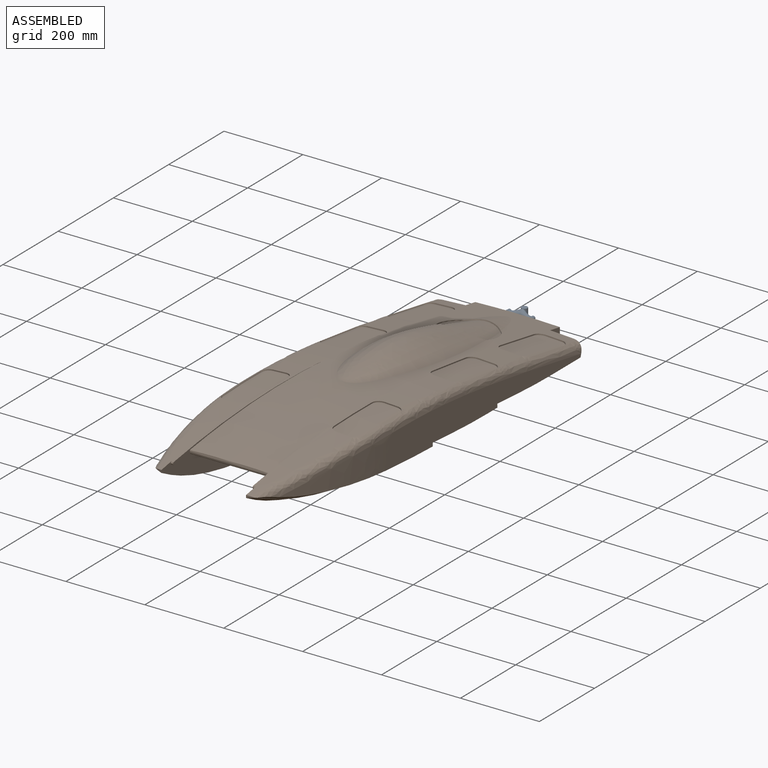
[diagram: assembled view]
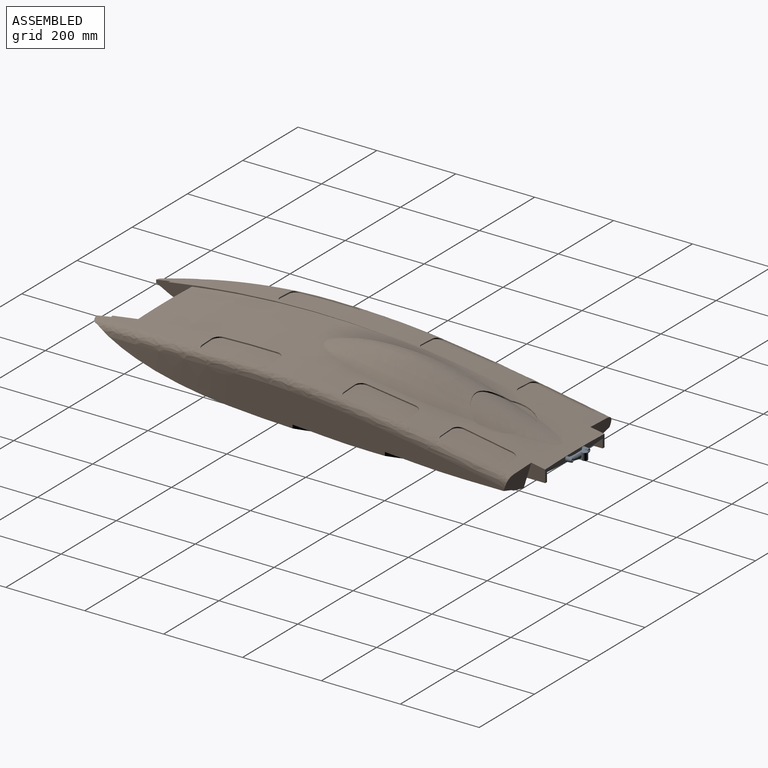
[diagram: assembled view, second angle]
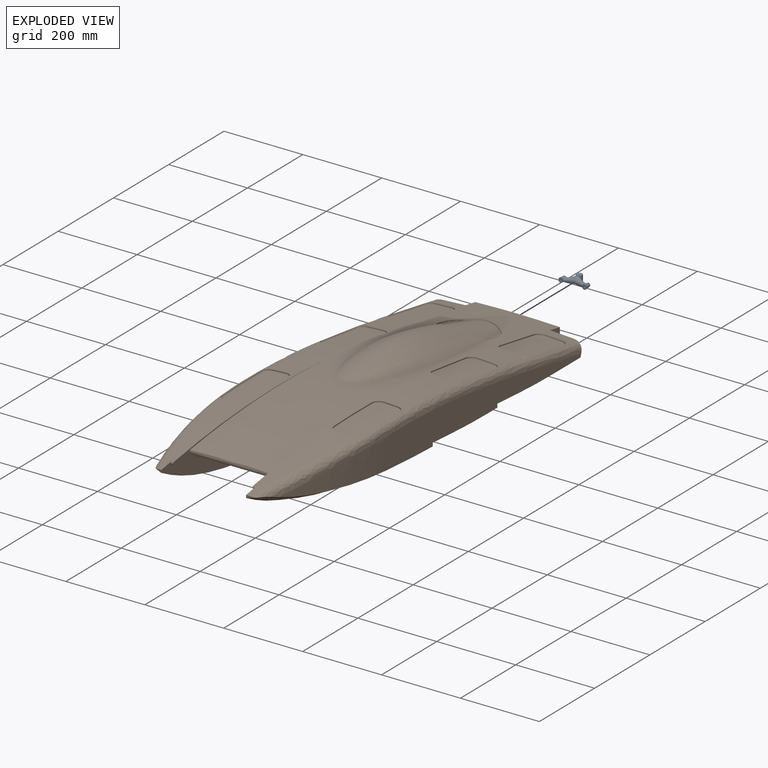
[diagram: exploded view]
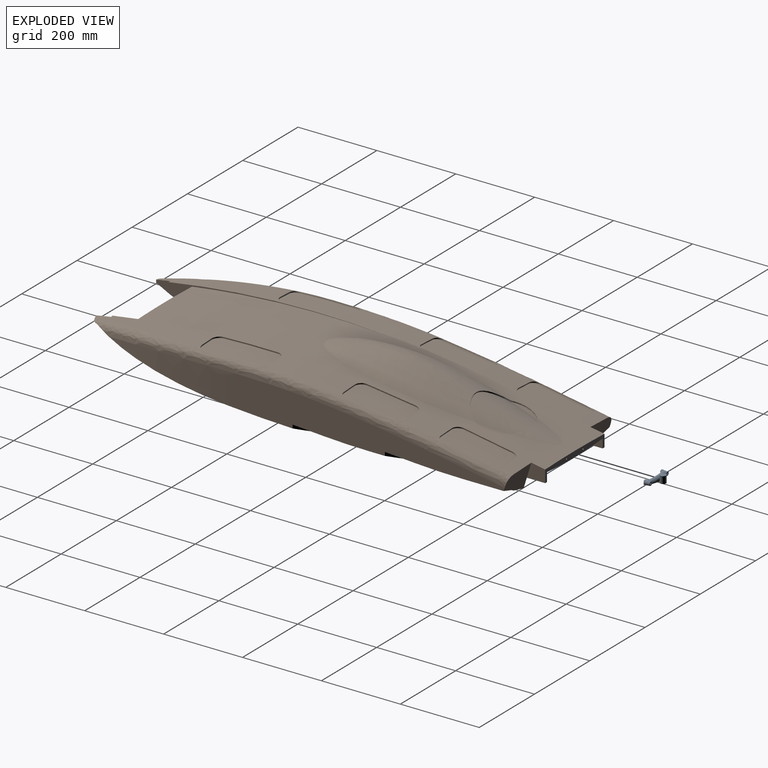
[diagram: exploded view, second angle]
ASSEMBLY  parts=2 mates=3
PART A: 34 faces, bbox 73x33.5x19 mm
  f0: cone r=6mm half-angle=5deg, axis (0,-1,0), area 45.1mm2, adj f1,f10,f11,f12,f28
  f1: cone r=6mm half-angle=5deg, axis (0,-1,0), area 45.1mm2, adj f0,f10,f11,f28
  f2: plane 10.39x3mm, normal (0,-1,0), area 22.1mm2, adj f11,f12,f30
  f3: bspline ~27.89x17.07mm, area 682.4mm2, adj f4,f15,f19,f33
  f4: bspline ~27.89x17.07mm, area 682.4mm2, adj f3,f11,f16,f28
  f5: cone r=6mm half-angle=5deg, axis (0,-1,0), area 45.1mm2, adj f6,f17,f18,f19,f33
  f6: cone r=6mm half-angle=5deg, axis (0,-1,0), area 45.1mm2, adj f5,f17,f19,f33
  f7: plane 10.39x3mm, normal (0,-1,0), area 22.1mm2, adj f18,f19,f31
  f8: cylinder r=2mm len=14mm, axis (0,-1,0), area 175.9mm2, adj f20,f33
  f9: cylinder r=2mm len=14mm, axis (0,-1,0), area 175.9mm2, adj f13,f28
  f10: cone r=6mm half-angle=5deg, axis (0,-1,0), area 29.1mm2, adj f0,f1,f11
  f11: cone r=6mm half-angle=5deg, axis (0,-1,0), area 241mm2, adj f0,f1,f2,f4,f10,f12,f13,f14
  f12: cone r=6mm half-angle=5deg, axis (0,-1,0), area 13.2mm2, adj f0,f2,f11,f28,f30
  f13: plane 9.38x9.38mm, normal (0,1,0), area 56.5mm2, adj f9,f11
  f14: plane 10.39x3mm, normal (0,-1,0), area 22.1mm2, adj f11,f29
  f15: bspline ~27.51x17.07mm, area 361mm2, adj f3,f19,f25
  f16: bspline ~27.51x17.07mm, area 361mm2, adj f4,f11,f24
  f17: cone r=6mm half-angle=5deg, axis (0,-1,0), area 29.1mm2, adj f5,f6,f19
  f18: cone r=6mm half-angle=5deg, axis (0,-1,0), area 13.2mm2, adj f5,f7,f19,f31,f33
  f19: cone r=6mm half-angle=5deg, axis (0,-1,0), area 241mm2, adj f3,f5,f6,f7,f15,f17,f18,f20
  f20: plane 9.38x9.38mm, normal (0,1,0), area 56.5mm2, adj f8,f19
  f21: plane 10.39x3mm, normal (0,-1,0), area 22.1mm2, adj f19,f32
  f22: cylinder r=7.5mm len=17.07mm, axis (0,0,1), area 103.1mm2, adj f23,f24
  f23: cylinder r=7.5mm len=17.07mm, axis (0,0,1), area 103.1mm2, adj f22,f25
  f24: cylinder r=7.5mm len=18mm, axis (0,0,1), area 217.9mm2, adj f16,f22,f25,f26,f27
  f25: cylinder r=7.5mm len=18mm, axis (0,0,1), area 217.9mm2, adj f15,f23,f24,f26,f27
  f26: plane 15x15mm, normal (0,0,-1), area 176.7mm2, adj f24,f25
  f27: plane 15x15mm, normal (0,0,1), area 176.7mm2, adj f24,f25
  f28: plane 13.35x7.03mm, normal (0,-1,0), area 55.9mm2, adj f0,f1,f4,f9,f11,f12,f29,f30
  f29: plane 10.39x1mm, normal (0,0,1), area 10.3mm2, adj f11,f14,f28
  f30: plane 10.39x1mm, normal (0,0,-1), area 10.3mm2, adj f2,f11,f12,f28
  f31: plane 10.39x1mm, normal (0,0,-1), area 10.3mm2, adj f7,f18,f19,f33
  f32: plane 10.39x1mm, normal (0,0,1), area 10.3mm2, adj f19,f21,f33
  f33: plane 13.35x7.03mm, normal (0,-1,0), area 55.9mm2, adj f3,f5,f6,f8,f18,f19,f31,f32
PART B: 203 faces, bbox 398.6x1211.5x191.1 mm
  f0: bspline ~79.82x23.27mm, area 240.2mm2, adj f1,f3,f138,f144
  f1: bspline ~67.56x50.87mm, area 279.3mm2, adj f0,f2,f137,f138,f140
  f2: bspline ~69.82x56.27mm, area 279.3mm2, adj f1,f4,f72,f73,f75
  f3: bspline ~54.55x25.67mm, area 164.5mm2, adj f0,f5,f138,f139,f198
  f4: bspline ~79.82x23.27mm, area 240.2mm2, adj f2,f5,f73,f79
  f5: bspline ~54.55x25.67mm, area 164.5mm2, adj f3,f4,f73,f74,f134
  f6: bspline ~18.02x12.64mm, area 68.1mm2, adj f8,f9,f149,f153
  f7: bspline ~16.34x9.4mm, area 58.2mm2, adj f8,f14,f149,f153
  f8: bspline ~136.37x5.45mm, area 408.9mm2, adj f6,f7,f149,f153
  f9: bspline ~6.97x3.35mm, area 20.7mm2, adj f6,f10,f150,f154
  f10: bspline ~32.39x4.63mm, area 96.8mm2, adj f9,f11,f150,f154
  f11: bspline ~18.14x13.12mm, area 71.2mm2, adj f10,f15,f150,f154
  f12: bspline ~18.14x13.04mm, area 71.2mm2, adj f13,f17,f151,f154
  f13: bspline ~32.39x4.64mm, area 96.8mm2, adj f12,f14,f151,f154
  f14: bspline ~9.94x3.52mm, area 30.8mm2, adj f7,f13,f151,f154
  f15: bspline ~6.15x3.32mm, area 18.4mm2, adj f11,f16,f152,f190
  f16: bspline ~136.37x5.5mm, area 408.9mm2, adj f15,f17,f152,f190
  f17: bspline ~6.07x3.17mm, area 18.4mm2, adj f12,f16,f152,f190
  f18: bspline ~7.69x3.61mm, area 23.3mm2, adj f19,f37,f144,f148
  f19: bspline ~39.04x4.94mm, area 116.8mm2, adj f18,f20,f144,f148
  f20: bspline ~19.32x19.11mm, area 89.7mm2, adj f19,f21,f144,f148
  f21: bspline ~121.41x18.8mm, area 366.1mm2, adj f20,f22,f144,f148
  f22: bspline ~19.44x19.11mm, area 90.2mm2, adj f21,f23,f144,f148
  f23: bspline ~39.03x4.92mm, area 116.8mm2, adj f22,f24,f144,f148
  f24: bspline ~7.68x3.17mm, area 23.2mm2, adj f23,f35,f144,f148
  f25: bspline ~7.68x3.7mm, area 23.2mm2, adj f26,f34,f142,f144
  f26: bspline ~39.03x4.92mm, area 116.8mm2, adj f25,f27,f142,f144
  f27: bspline ~19.49x19.11mm, area 90mm2, adj f26,f28,f142,f144
  f28: bspline ~121.56x23.88mm, area 368.5mm2, adj f27,f29,f142,f144
  f29: bspline ~19.53x19.11mm, area 90.4mm2, adj f28,f30,f142,f144
  f30: bspline ~39.03x4.91mm, area 116.8mm2, adj f29,f31,f142,f144
  f31: bspline ~7.67x3.16mm, area 23.1mm2, adj f30,f32,f142,f144
  f32: bspline ~17.94x11.67mm, area 65.5mm2, adj f31,f33,f141,f143
  f33: bspline ~121.52x23.64mm, area 368.5mm2, adj f32,f34,f141,f143
  f34: bspline ~17.95x11.67mm, area 67.5mm2, adj f25,f33,f141,f143
  f35: bspline ~17.86x11.68mm, area 65.5mm2, adj f24,f36,f143,f147
  f36: bspline ~121.37x18.54mm, area 366.2mm2, adj f35,f37,f143,f147
  f37: bspline ~17.77x11.66mm, area 66.8mm2, adj f18,f36,f143,f147
  f38: bspline ~17.77x11.66mm, area 66.8mm2, adj f39,f57,f78,f82
  f39: bspline ~121.38x18.57mm, area 366.2mm2, adj f38,f40,f78,f82
  f40: bspline ~17.86x11.68mm, area 65.5mm2, adj f39,f51,f78,f82
  f41: bspline ~17.95x11.67mm, area 67.5mm2, adj f42,f50,f76,f78
  f42: bspline ~121.52x23.64mm, area 368.5mm2, adj f41,f43,f76,f78
  f43: bspline ~17.94x11.67mm, area 65.5mm2, adj f42,f44,f76,f78
  f44: bspline ~7.67x3.16mm, area 23.1mm2, adj f43,f45,f77,f79
  f45: bspline ~39.03x4.91mm, area 116.8mm2, adj f44,f46,f77,f79
  f46: bspline ~19.53x19.11mm, area 90.4mm2, adj f45,f47,f77,f79
  f47: bspline ~121.56x23.88mm, area 368.5mm2, adj f46,f48,f77,f79
  f48: bspline ~19.49x19.11mm, area 90mm2, adj f47,f49,f77,f79
  f49: bspline ~39.03x4.92mm, area 116.8mm2, adj f48,f50,f77,f79
  f50: bspline ~7.68x3.7mm, area 23.2mm2, adj f41,f49,f77,f79
  f51: bspline ~7.68x3.17mm, area 23.2mm2, adj f40,f52,f79,f83
  f52: bspline ~39.03x4.92mm, area 116.8mm2, adj f51,f53,f79,f83
  f53: bspline ~19.44x19.11mm, area 90.2mm2, adj f52,f54,f79,f83
  f54: bspline ~121.41x18.8mm, area 366.1mm2, adj f53,f55,f79,f83
  f55: bspline ~19.32x19.11mm, area 89.7mm2, adj f54,f56,f79,f83
  f56: bspline ~39.04x4.94mm, area 116.8mm2, adj f55,f57,f79,f83
  f57: bspline ~7.69x3.64mm, area 23.3mm2, adj f38,f56,f79,f83
  f58: bspline ~16.34x9.41mm, area 58.2mm2, adj f60,f61,f84,f88
  f59: bspline ~18.02x12.64mm, area 68.1mm2, adj f60,f66,f84,f88
  f60: bspline ~136.37x5.45mm, area 408.9mm2, adj f58,f59,f84,f88
  f61: bspline ~9.94x3.52mm, area 30.8mm2, adj f58,f62,f86,f89
  f62: bspline ~32.39x4.64mm, area 96.8mm2, adj f61,f63,f86,f89
  f63: bspline ~18.14x13.04mm, area 71.2mm2, adj f62,f67,f86,f89
  f64: bspline ~18.14x13.12mm, area 71.2mm2, adj f65,f69,f85,f89
  f65: bspline ~32.39x4.63mm, area 96.8mm2, adj f64,f66,f85,f89
  f66: bspline ~6.97x3.35mm, area 20.7mm2, adj f59,f65,f85,f89
  f67: bspline ~6.07x3.17mm, area 18.4mm2, adj f63,f68,f87,f126
  f68: bspline ~136.37x5.5mm, area 408.9mm2, adj f67,f69,f87,f126
  f69: bspline ~6.15x3.32mm, area 18.4mm2, adj f64,f68,f87,f126
  f70: plane 214.51x33.12mm, normal (0,-1,0), area 2878.5mm2, adj f79,f94,f96,f124,f130,f144,f159,f160
  f71: offset ~183.78x112.88mm, area 5440.9mm2, adj f72,f73,f74,f136
  f72: offset ~118.89x117.63mm, area 839.9mm2, adj f2,f71,f73,f137
  f73: offset ~200.95x121.27mm, area 723.5mm2, adj f2,f4,f5,f71,f72,f74
  f74: offset ~130.37x96.3mm, area 541.2mm2, adj f5,f71,f73,f139
  f75: bspline ~353.57x164.73mm, area 26586.9mm2, adj f2,f79,f133,f140
  f76: offset ~273.83x76.31mm, area 1220.1mm2, adj f41,f42,f43,f77,f80
  f77: offset ~200.95x180.25mm, area 2440.3mm2, adj f44,f45,f46,f47,f48,f49,f50,f76
  f78: bspline ~532.68x104.06mm, area 17228mm2, adj f38,f39,f40,f41,f42,f43,f79,f84
  f79: bspline ~598.03x191.75mm, area 34934.4mm2, adj f4,f44,f45,f46,f47,f48,f49,f50
  f80: offset ~240.96x70.48mm, area 303.1mm2, adj f76,f81
  f81: offset ~200.95x160.35mm, area 7945.6mm2, adj f77,f80
  f82: offset ~319.11x71.86mm, area 1212mm2, adj f38,f39,f40,f83,f131
  f83: offset ~201.11x200.95mm, area 2424.4mm2, adj f51,f52,f53,f54,f55,f56,f57,f82
  f84: bspline ~610.96x86.79mm, area 21759.3mm2, adj f58,f59,f60,f78,f85,f86,f92,f93
  f85: bspline ~503.69x91mm, area 10693.5mm2, adj f64,f65,f66,f84,f87,f91,f92
  f86: bspline ~208.34x91mm, area 7263.3mm2, adj f61,f62,f63,f79,f84,f87
  f87: bspline ~610.81x91.99mm, area 3503.7mm2, adj f67,f68,f69,f79,f85,f86,f124,f129
  f88: offset ~245.37x38.11mm, area 1464.1mm2, adj f58,f59,f60,f89,f132
  f89: offset ~362x99.98mm, area 2315.4mm2, adj f61,f62,f63,f64,f65,f66,f88,f126
  f90: extruded ~545.59x79.45mm, area 3601.3mm2, adj f91,f96,f124,f129
  f91: plane 1098.23x121.04mm, normal (1,0,0), area 28606.3mm2, adj f85,f90,f92,f96,f99,f103,f106,f107
  f92: extruded ~18.49x6.72mm, area 68.5mm2, adj f84,f85,f91,f107
  f93: bspline ~1089.43x146.88mm, area 55522.5mm2, adj f78,f84,f97,f101,f102,f109,f110,f111
  f94: plane 46.63x37.33mm, normal (-1,0,0), area 1417.9mm2, adj f70,f79,f96,f109
  f95: plane 868.42x201.5mm, normal (0,0.06,1), area 175276.6mm2, adj f123,f124,f130,f187,f188,f194
  f96: plane 555.08x6.5mm, normal (0,0,1), area 3608mm2, adj f70,f90,f91,f94,f124
  f97: plane 78.35x42.25mm, normal (-0.33,0,0.95), area 2557.2mm2, adj f93,f100,f111,f121
  f98: plane 262.55x16.48mm, normal (-1,0,0), area 492.7mm2, adj f102,f103,f109,f110,f111,f112,f119,f120
  f99: plane 93.28x42.25mm, normal (-0.26,0,0.97), area 3943.4mm2, adj f91,f100,f111,f113,f122
  f100: plane 242.24x16.48mm, normal (-1,0,0), area 453.6mm2, adj f97,f99,f111,f114,f116,f118,f121,f122
  f101: bspline ~636.21x94.34mm, area 20929mm2, adj f84,f93,f104,f108,f118
  f102: plane 103.12x42.26mm, normal (-0.33,0,0.95), area 4507.9mm2, adj f93,f98,f109,f119
  f103: plane 96.74x42.25mm, normal (-0.26,0,0.97), area 4155.8mm2, adj f91,f98,f109,f120
  f104: plane 16.25x16.25mm, normal (-0.33,0,0.95), area 139.6mm2, adj f101,f105,f118
  f105: plane 16.25x1.95mm, normal (-1,0,0), area 31.7mm2, adj f104,f106,f108,f118
  f106: plane 42.25x32.5mm, normal (-0.26,0,0.97), area 1284.9mm2, adj f91,f105,f107,f117,f118
  f107: bspline ~591.2x106.94mm, area 23411.7mm2, adj f84,f91,f92,f106,f108
  f108: bspline ~571.02x90.93mm, area 674.7mm2, adj f84,f101,f105,f107
  f109: plane 85.91x64.74mm, normal (0,-0.96,0.29), area 4168.8mm2, adj f78,f79,f91,f93,f94,f98,f102,f103
  f110: plane 75.22x42.25mm, normal (-0.32,0.06,0.94), area 2422.1mm2, adj f93,f98,f111,f119
  f111: plane 58.5x58.5mm, normal (-0.71,-0.71,0), area 591.5mm2, adj f93,f97,f98,f99,f100,f110,f112,f113
  f112: plane 42.25x31.66mm, normal (-0.26,0.06,0.96), area 812.4mm2, adj f91,f98,f111,f113,f120
  f113: plane 26x12.17mm, normal (0,-1,0), area 135.2mm2, adj f91,f99,f111,f112
  f114: plane 78.35x45.37mm, normal (-0.32,0.06,0.94), area 2422.2mm2, adj f93,f100,f115,f118,f121
  f115: plane 30.79x2.05mm, normal (0,0.07,1), area 0mm2, adj f93,f114,f118
  f116: plane 42.25x31.66mm, normal (-0.26,0.06,0.96), area 812.4mm2, adj f91,f100,f117,f118,f122
  f117: plane 26x12.17mm, normal (0,-1,0), area 135.2mm2, adj f91,f106,f116,f118
  f118: plane 61.17x61.17mm, normal (-0.71,-0.71,0), area 588.1mm2, adj f93,f100,f101,f104,f105,f106,f114,f115
  f119: bspline ~122.67x49.12mm, area 5485.2mm2, adj f93,f98,f102,f110
  f120: bspline ~125.31x48.67mm, area 5485mm2, adj f91,f98,f103,f112
  f121: bspline ~122.67x49.12mm, area 5485.3mm2, adj f93,f97,f100,f114
  f122: bspline ~125.31x48.67mm, area 5485mm2, adj f91,f99,f100,f116
  f123: bspline ~100.75x11.64mm, area 1332.9mm2, adj f95,f124,f125,f187
  f124: plane 1110.24x119.3mm, normal (1,0,0), area 48374.2mm2, adj f70,f87,f90,f95,f96,f123,f125,f129
  f125: bspline ~503.84x100.75mm, area 47686.1mm2, adj f79,f123,f124,f133,f189
  f126: offset ~362x99.98mm, area 139.1mm2, adj f67,f68,f69,f89
  f127: offset ~200.95x182.7mm, area 7895.3mm2, adj f83,f131
  f128: offset ~362x99.98mm, area 7908.2mm2, adj f89,f132
  f129: bspline ~22.07x15.95mm, area 66.7mm2, adj f87,f90,f91,f124
  f130: bspline ~171.58x100.75mm, area 17338.4mm2, adj f70,f95,f124,f194
  f131: offset ~319.11x71.86mm, area 300mm2, adj f82,f127
  f132: offset ~245.37x38.11mm, area 80.7mm2, adj f88,f128
  f133: bspline ~124.73x88.58mm, area 2531mm2, adj f75,f125,f197
  f134: bspline ~155.72x100.14mm, area 2360.4mm2, adj f5,f79,f198
  f135: offset ~200.95x58.46mm, area 111.4mm2, adj f136,f137,f138
  f136: offset ~183.78x112.88mm, area 5440.7mm2, adj f71,f135,f137,f139
  f137: offset ~118.89x117.63mm, area 840mm2, adj f1,f72,f135,f136,f138
  f138: offset ~200.95x121.27mm, area 611.3mm2, adj f0,f1,f3,f135,f137,f139
  f139: offset ~130.37x96.3mm, area 541.2mm2, adj f3,f74,f136,f138
  f140: bspline ~353.57x164.73mm, area 26586.9mm2, adj f1,f75,f144,f197
  f141: offset ~162.37x35.31mm, area 1220.1mm2, adj f32,f33,f34,f142,f145
  f142: offset ~200.95x180.25mm, area 2440.3mm2, adj f25,f26,f27,f28,f29,f30,f31,f141
  f143: bspline ~507.64x99.61mm, area 17228mm2, adj f32,f33,f34,f35,f36,f37,f144,f149
  f144: bspline ~598.03x191.75mm, area 34945.9mm2, adj f0,f18,f19,f20,f21,f22,f23,f24
  f145: offset ~240.96x70.48mm, area 303.1mm2, adj f141,f146
  f146: offset ~200.95x160.35mm, area 7945.6mm2, adj f142,f145
  f147: offset ~319.11x71.86mm, area 1212mm2, adj f35,f36,f37,f148,f195
  f148: offset ~201.11x200.95mm, area 2424.4mm2, adj f18,f19,f20,f21,f22,f23,f24,f147
  f149: bspline ~598.72x83.42mm, area 21743.2mm2, adj f6,f7,f8,f143,f150,f151,f157,f158
  f150: bspline ~503.69x91mm, area 10693.3mm2, adj f9,f10,f11,f149,f152,f156,f157
  f151: bspline ~208.34x91mm, area 7263.5mm2, adj f12,f13,f14,f144,f149,f152
  f152: bspline ~610.81x91.99mm, area 3503.7mm2, adj f15,f16,f17,f144,f150,f151,f188,f193
  f153: offset ~245.37x38.11mm, area 1464.1mm2, adj f6,f7,f8,f154,f196
  f154: offset ~362x99.98mm, area 2315.4mm2, adj f9,f10,f11,f12,f13,f14,f153,f190
  f155: extruded ~545.59x79.45mm, area 3601.3mm2, adj f156,f160,f188,f193
  f156: plane 1097.95x121.04mm, normal (-1,0,0), area 28606.3mm2, adj f150,f155,f157,f160,f163,f167,f170,f171
  f157: extruded ~18.49x6.72mm, area 68.5mm2, adj f149,f150,f156,f171
  f158: bspline ~1089.43x146.88mm, area 55496.8mm2, adj f143,f149,f161,f165,f166,f173,f174,f175
  f159: plane 46.63x37.33mm, normal (1,0,0), area 1417.9mm2, adj f70,f144,f160,f173
  f160: plane 555.08x6.5mm, normal (0,0,1), area 3608mm2, adj f70,f155,f156,f159,f188
  f161: plane 78.35x42.25mm, normal (0.33,0,0.95), area 2557.2mm2, adj f158,f164,f175,f185
  f162: plane 262.55x16.48mm, normal (1,0,0), area 492.7mm2, adj f166,f167,f173,f174,f175,f176,f183,f184
  f163: plane 93.28x42.25mm, normal (0.26,0,0.97), area 3943.4mm2, adj f156,f164,f175,f177,f186
  f164: plane 242.24x16.48mm, normal (1,0,0), area 453.6mm2, adj f161,f163,f175,f178,f180,f182,f185,f186
  f165: bspline ~636.21x94.32mm, area 20946.3mm2, adj f149,f158,f168,f172,f182
  f166: plane 103.12x42.26mm, normal (0.33,0,0.95), area 4507.9mm2, adj f158,f162,f173,f183
  f167: plane 96.74x42.25mm, normal (0.26,0,0.97), area 4155.8mm2, adj f156,f162,f173,f184
  f168: plane 16.25x16.25mm, normal (0.33,0,0.95), area 139.6mm2, adj f165,f169,f182
  f169: plane 16.25x1.95mm, normal (1,0,0), area 31.7mm2, adj f168,f170,f172,f182
  f170: plane 42.25x32.5mm, normal (0.26,0,0.97), area 1284.9mm2, adj f156,f169,f171,f181,f182
  f171: bspline ~591.2x106.94mm, area 23411.7mm2, adj f149,f156,f157,f170,f172
  f172: bspline ~571.02x90.93mm, area 674.7mm2, adj f149,f165,f169,f171
  f173: plane 85.91x64.74mm, normal (0,-0.96,0.29), area 4168.8mm2, adj f143,f144,f156,f158,f159,f162,f166,f167
  f174: plane 75.22x42.25mm, normal (0.32,0.06,0.94), area 2422.1mm2, adj f158,f162,f175,f183
  f175: plane 58.5x58.5mm, normal (0.71,-0.71,0), area 591.5mm2, adj f158,f161,f162,f163,f164,f174,f176,f177
  f176: plane 42.25x31.66mm, normal (0.26,0.06,0.96), area 812.4mm2, adj f156,f162,f175,f177,f184
  f177: plane 26x12.17mm, normal (0,-1,0), area 135.2mm2, adj f156,f163,f175,f176
  f178: plane 78.93x45.37mm, normal (0.32,0.06,0.94), area 2422.2mm2, adj f158,f164,f179,f182,f185
  f179: plane 30.79x2.05mm, normal (0,0.07,1), area 0mm2, adj f158,f178,f182
  f180: plane 42.25x31.66mm, normal (0.26,0.06,0.96), area 812.4mm2, adj f156,f164,f181,f182,f186
  f181: plane 26x12.17mm, normal (0,-1,0), area 135.2mm2, adj f156,f170,f180,f182
  f182: plane 61.17x61.17mm, normal (0.71,-0.71,0), area 588.1mm2, adj f158,f164,f165,f168,f169,f170,f178,f179
  f183: bspline ~122.67x49.12mm, area 5485.2mm2, adj f158,f162,f166,f174
  f184: bspline ~125.31x48.67mm, area 5485mm2, adj f156,f162,f167,f176
  f185: bspline ~122.67x49.12mm, area 5485.3mm2, adj f158,f161,f164,f178
  f186: bspline ~125.31x48.67mm, area 5485mm2, adj f156,f163,f164,f180
  f187: bspline ~100.75x11.64mm, area 1332.9mm2, adj f95,f123,f188,f189
  f188: plane 1110.24x119.3mm, normal (-1,0,0), area 48374.2mm2, adj f70,f95,f152,f155,f160,f187,f189,f193
  f189: bspline ~503.84x100.75mm, area 47686.1mm2, adj f125,f144,f187,f188,f197
  f190: offset ~362x99.98mm, area 139.1mm2, adj f15,f16,f17,f154
  f191: offset ~200.95x182.7mm, area 7895.3mm2, adj f148,f195
  f192: offset ~362x99.98mm, area 7801.8mm2, adj f154,f196
  f193: bspline ~22.07x15.95mm, area 66.7mm2, adj f152,f155,f156,f188
  f194: bspline ~171.58x100.75mm, area 17338.4mm2, adj f70,f95,f130,f188
  f195: offset ~319.11x71.86mm, area 300.1mm2, adj f147,f191
  f196: offset ~245.37x38.11mm, area 80.7mm2, adj f153,f192
  f197: bspline ~124.73x88.58mm, area 3956.9mm2, adj f133,f140,f189
  f198: bspline ~155.72x100.14mm, area 1269.3mm2, adj f3,f134,f144
  f199: cylinder r=2mm len=25mm, axis (0,1,0), area 314.2mm2, adj f70,f200
  f200: plane 4x4mm, normal (0,-1,0), area 12.6mm2, adj f199
  f201: cylinder r=2mm len=25mm, axis (0,1,0), area 314.2mm2, adj f70,f202
  f202: plane 4x4mm, normal (0,-1,0), area 12.6mm2, adj f201
PLACE A t=(-90.52,78.74,121.39)mm
PLACE B t=(-90.52,24.16,69.24)mm fixed
MATE slider B.f199 <-> A.f8  axis (0,1,0) through (-120.52,78.74,121.39)mm
MATE slider B.f201 <-> A.f9  axis (0,1,0) through (-60.52,78.74,121.39)mm
MATE planar B.f70 <-> A.f2  axis (0,1,0) through (-90.52,78.74,120.01)mm
